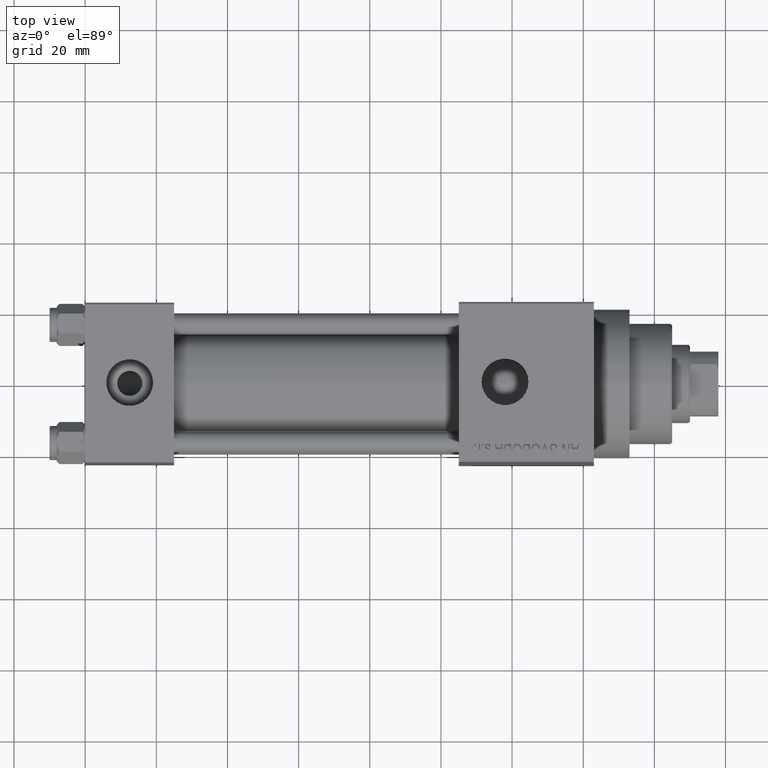
[diagram: clean part render]
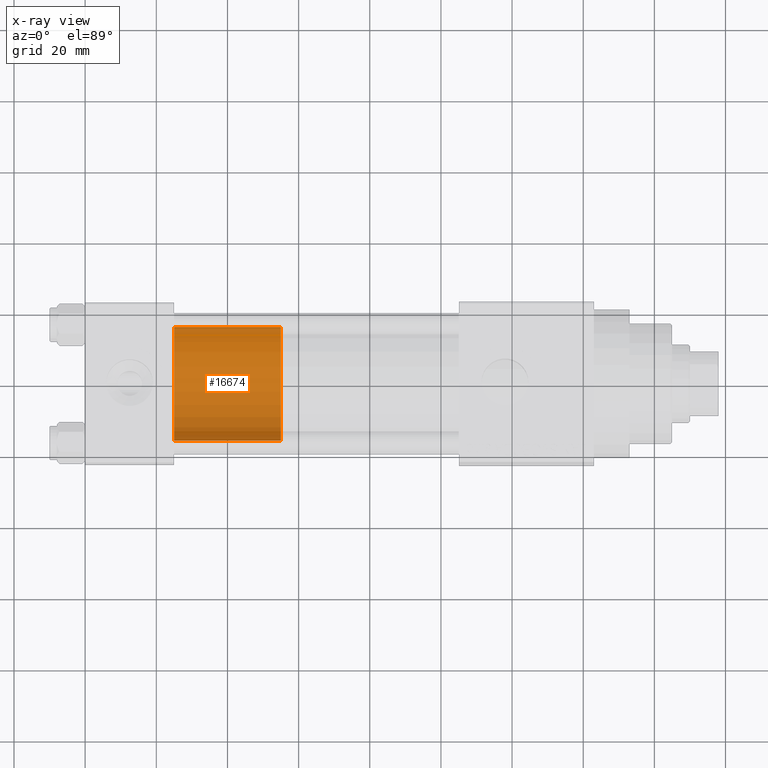
[diagram: x-ray — body ghosted, one internal face saturated and labeled with its STEP entity id]
A machine part, top view, then the same camera in x-ray: the body is ghosted and one INTERNAL B-rep face — a face not visible from any outside direction — is saturated and labeled: STEP entity #16674.
In plain terms, the highlighted cylindrical surface (partial cylindrical patch) has radius 16 mm, axis along (-1, 0, 0).
Its self-contained STEP definition (entity closure, byte-faithful):
#861 = FACE_OUTER_BOUND ( 'NONE', #5361, .T. ) ;
#1761 = ORIENTED_EDGE ( 'NONE', *, *, #41008, .F. ) ;
#1963 = CARTESIAN_POINT ( 'NONE',  ( 0.000000000000000000, 0.000000000000000000, 0.000000000000000000 ) ) ;
#3192 = CARTESIAN_POINT ( 'NONE',  ( -16.00000000000000000, 0.000000000000000000, 30.00000000000000000 ) ) ;
#3480 = CIRCLE ( 'NONE', #39316, 16.00000000000000000 ) ;
#4612 = CARTESIAN_POINT ( 'NONE',  ( 0.000000000000000000, 0.000000000000000000, 30.00000000000000000 ) ) ;
#5307 = DIRECTION ( 'NONE',  ( 1.000000000000000000, 0.000000000000000000, 0.000000000000000000 ) ) ;
#5361 = EDGE_LOOP ( 'NONE', ( #1761, #22001, #6346, #19475 ) ) ;
#5405 = CARTESIAN_POINT ( 'NONE',  ( -16.00000000000000000, 0.000000000000000000, 30.00000000000000000 ) ) ;
#6346 = ORIENTED_EDGE ( 'NONE', *, *, #35424, .T. ) ;
#6977 = VERTEX_POINT ( 'NONE', #38834 ) ;
#7524 = CARTESIAN_POINT ( 'NONE',  ( -16.00000000000000000, 0.000000000000000000, 0.000000000000000000 ) ) ;
#9844 = DIRECTION ( 'NONE',  ( 0.000000000000000000, 0.000000000000000000, 1.000000000000000000 ) ) ;
#10982 = CARTESIAN_POINT ( 'NONE',  ( 16.00000000000000000, 1.959434878635765131E-15, 30.00000000000000000 ) ) ;
#11866 = DIRECTION ( 'NONE',  ( -1.000000000000000000, 0.000000000000000000, 0.000000000000000000 ) ) ;
#13432 = DIRECTION ( 'NONE',  ( 1.000000000000000000, 0.000000000000000000, 0.000000000000000000 ) ) ;
#13992 = AXIS2_PLACEMENT_3D ( 'NONE', #1963, #9844, #13432 ) ;
#15457 = VECTOR ( 'NONE', #34290, 1000.000000000000000 ) ;
#16674 = ADVANCED_FACE ( 'NONE', ( #861 ), #29983, .T. ) ;
#18247 = VERTEX_POINT ( 'NONE', #7524 ) ;
#19475 = ORIENTED_EDGE ( 'NONE', *, *, #32932, .F. ) ;
#22001 = ORIENTED_EDGE ( 'NONE', *, *, #45040, .T. ) ;
#22771 = DIRECTION ( 'NONE',  ( 0.000000000000000000, 0.000000000000000000, 1.000000000000000000 ) ) ;
#26765 = CARTESIAN_POINT ( 'NONE',  ( 16.00000000000000000, 1.959434878635765131E-15, 0.000000000000000000 ) ) ;
#29526 = CARTESIAN_POINT ( 'NONE',  ( 0.000000000000000000, 0.000000000000000000, 30.00000000000000000 ) ) ;
#29983 = CYLINDRICAL_SURFACE ( 'NONE', #33448, 16.00000000000000000 ) ;
#31517 = CIRCLE ( 'NONE', #13992, 16.00000000000000000 ) ;
#32932 = EDGE_CURVE ( 'NONE', #36246, #18247, #45737, .T. ) ;
#33448 = AXIS2_PLACEMENT_3D ( 'NONE', #29526, #44536, #11866 ) ;
#33625 = DIRECTION ( 'NONE',  ( -0.000000000000000000, -0.000000000000000000, -1.000000000000000000 ) ) ;
#34290 = DIRECTION ( 'NONE',  ( -0.000000000000000000, -0.000000000000000000, -1.000000000000000000 ) ) ;
#35424 = EDGE_CURVE ( 'NONE', #46481, #18247, #31517, .T. ) ;
#36246 = VERTEX_POINT ( 'NONE', #3192 ) ;
#38834 = CARTESIAN_POINT ( 'NONE',  ( 16.00000000000000000, 1.959434878635765131E-15, 30.00000000000000000 ) ) ;
#39316 = AXIS2_PLACEMENT_3D ( 'NONE', #4612, #22771, #5307 ) ;
#40081 = LINE ( 'NONE', #10982, #40699 ) ;
#40699 = VECTOR ( 'NONE', #33625, 1000.000000000000000 ) ;
#41008 = EDGE_CURVE ( 'NONE', #6977, #36246, #3480, .T. ) ;
#44536 = DIRECTION ( 'NONE',  ( -0.000000000000000000, -0.000000000000000000, -1.000000000000000000 ) ) ;
#45040 = EDGE_CURVE ( 'NONE', #6977, #46481, #40081, .T. ) ;
#45737 = LINE ( 'NONE', #5405, #15457 ) ;
#46481 = VERTEX_POINT ( 'NONE', #26765 ) ;